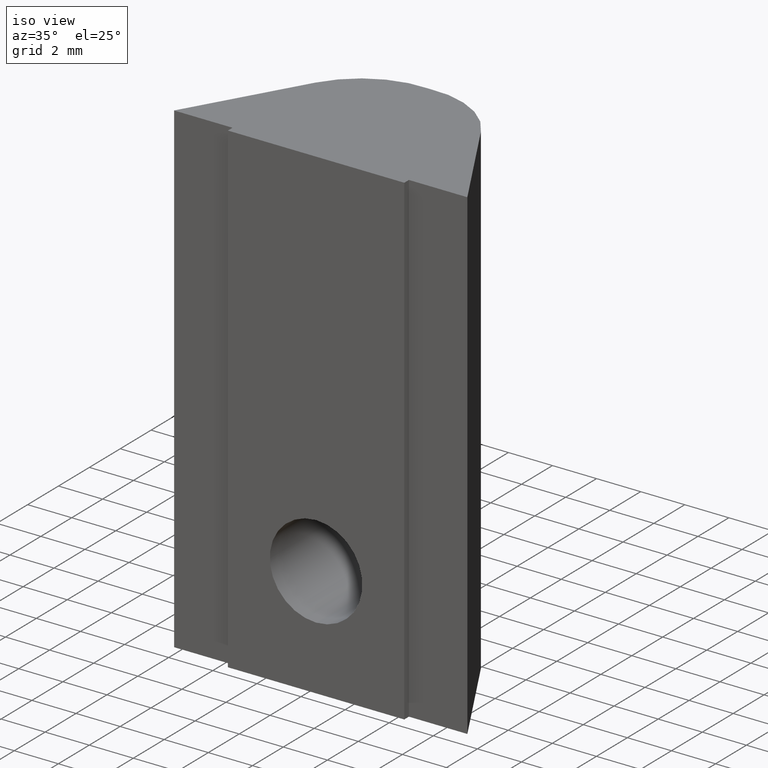
[diagram: clean part render]
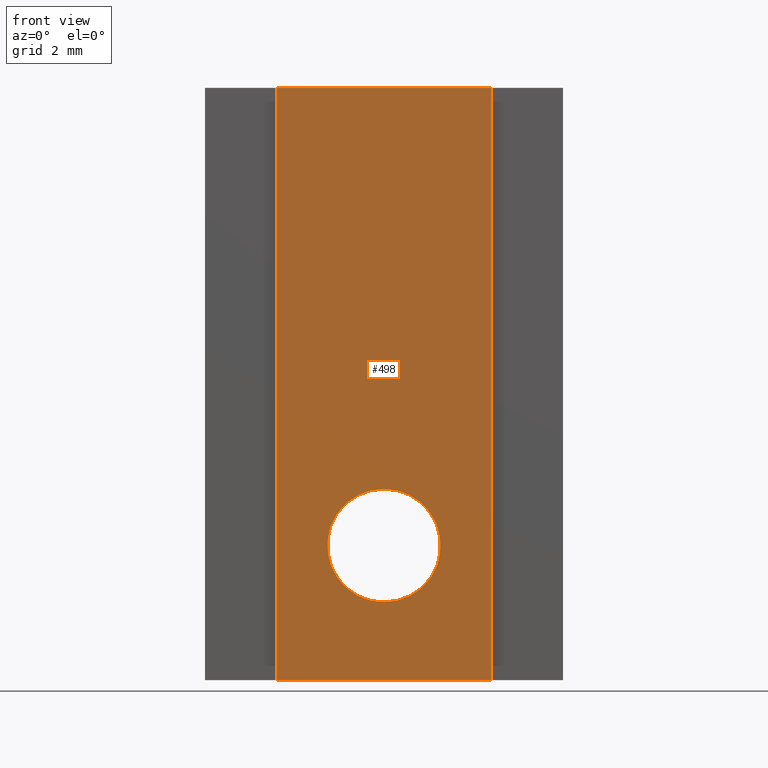
[diagram: tour spotlight — one face highlighted and labeled with its STEP entity id]
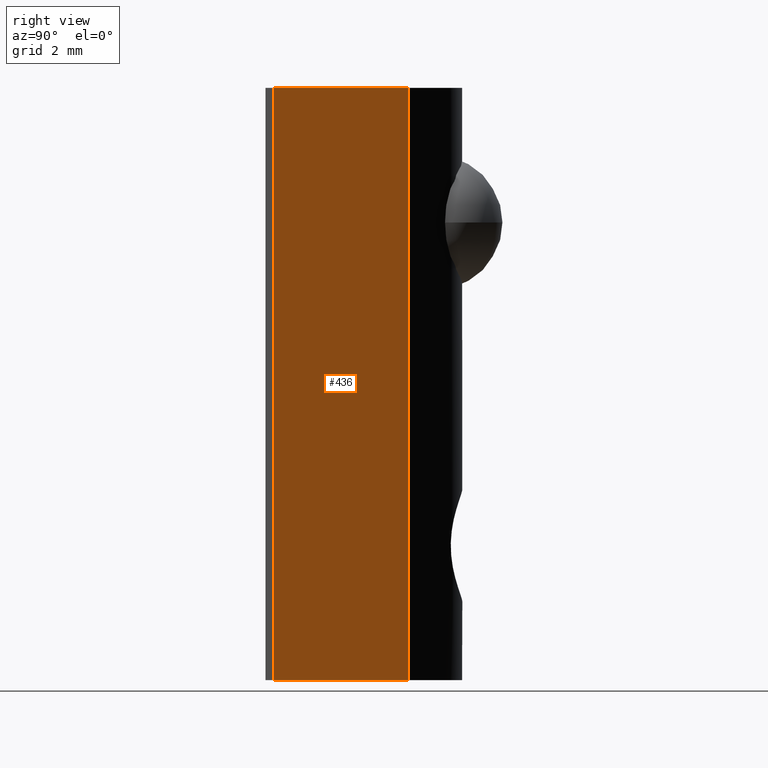
[diagram: tour spotlight — one face highlighted and labeled with its STEP entity id]
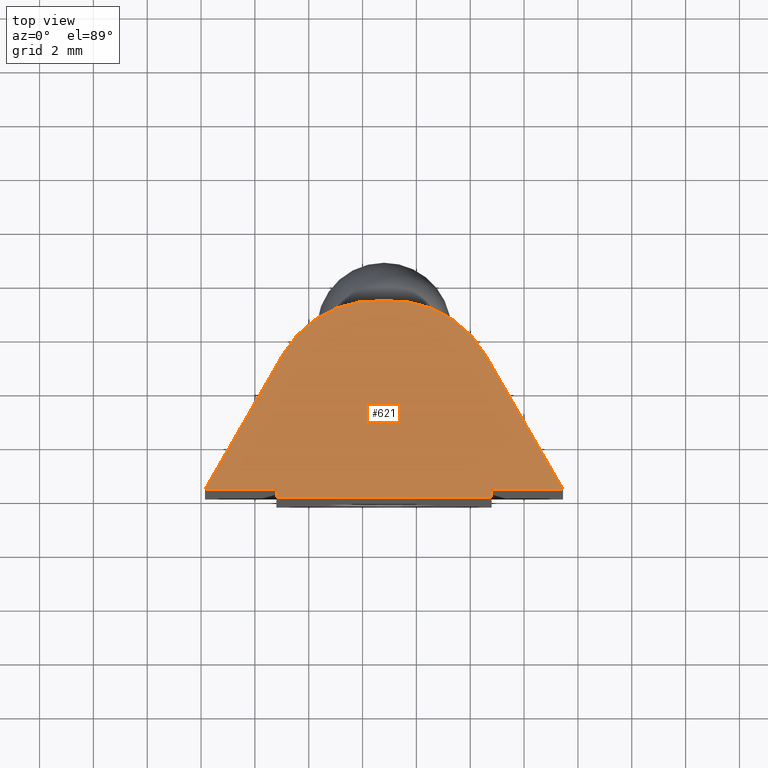
[diagram: tour spotlight — one face highlighted and labeled with its STEP entity id]
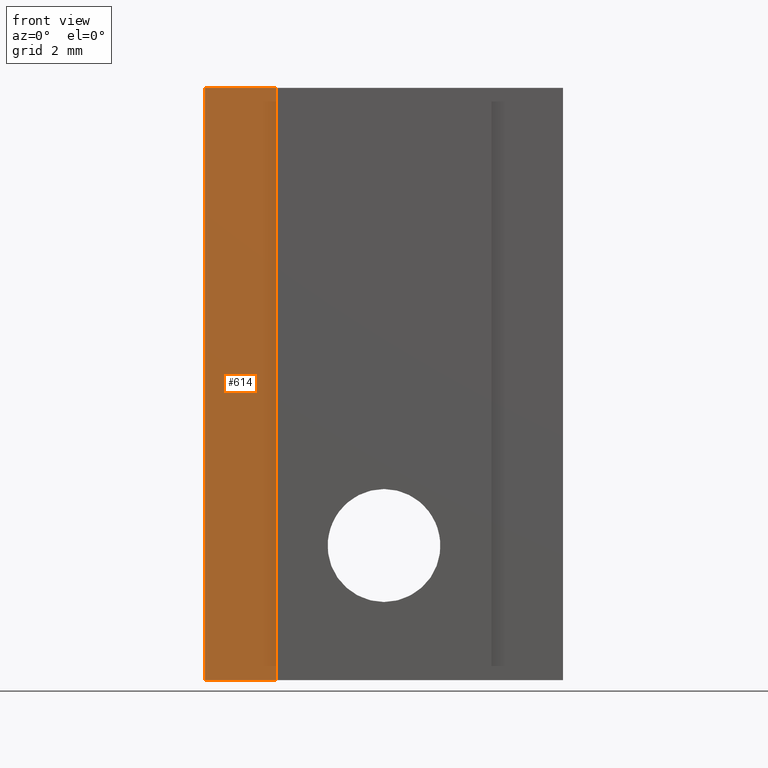
[diagram: tour spotlight — one face highlighted and labeled with its STEP entity id]
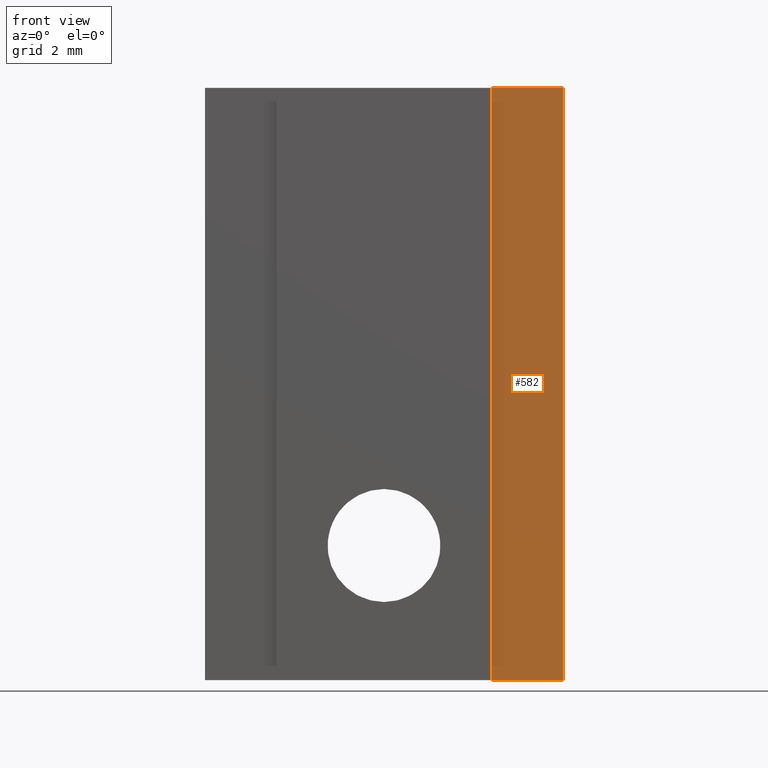
[diagram: tour spotlight — one face highlighted and labeled with its STEP entity id]
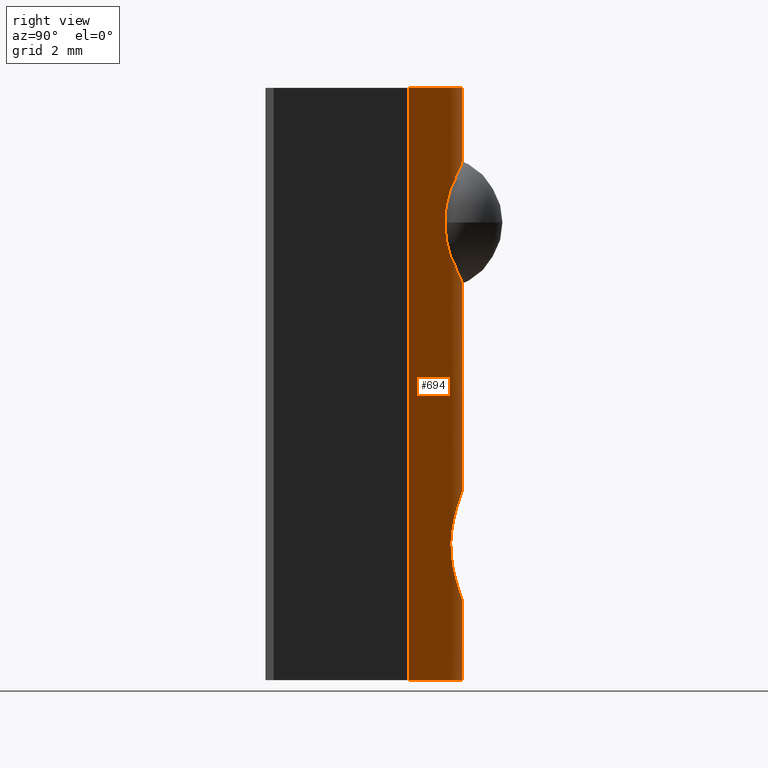
[diagram: tour spotlight — one face highlighted and labeled with its STEP entity id]
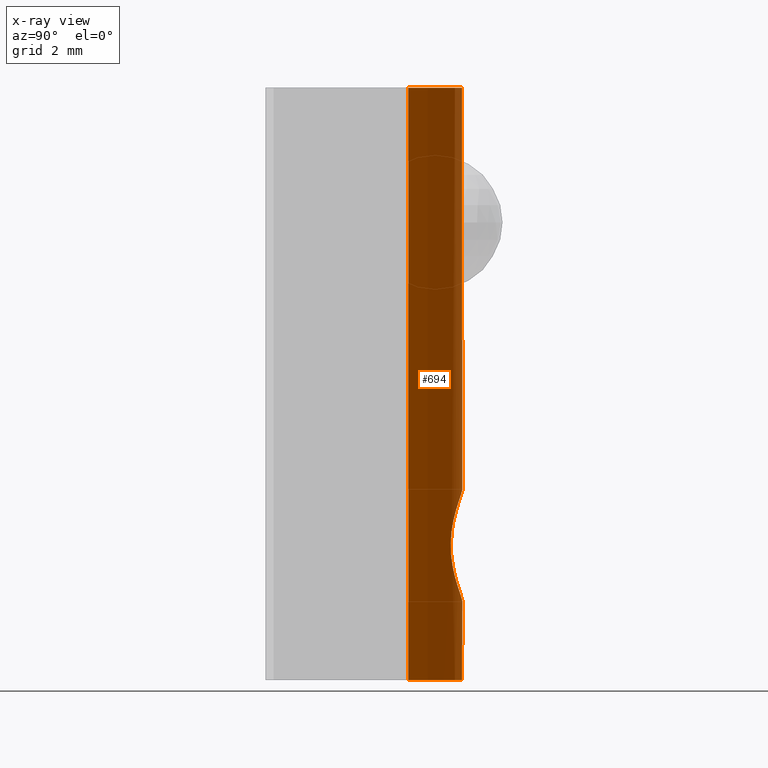
[diagram: x-ray of the same camera — body ghosted, this tour face saturated]
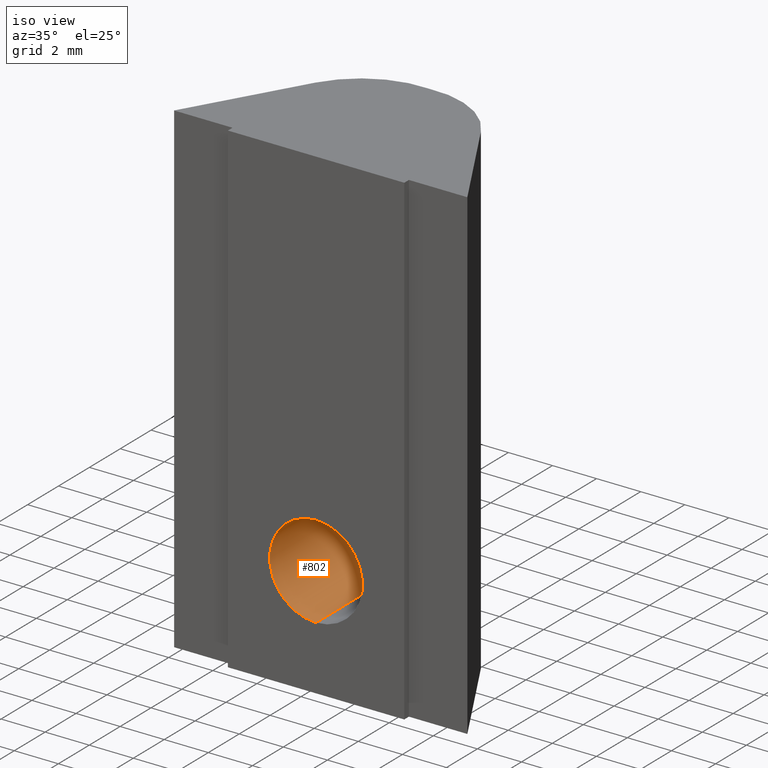
[diagram: tour spotlight — one face highlighted and labeled with its STEP entity id]
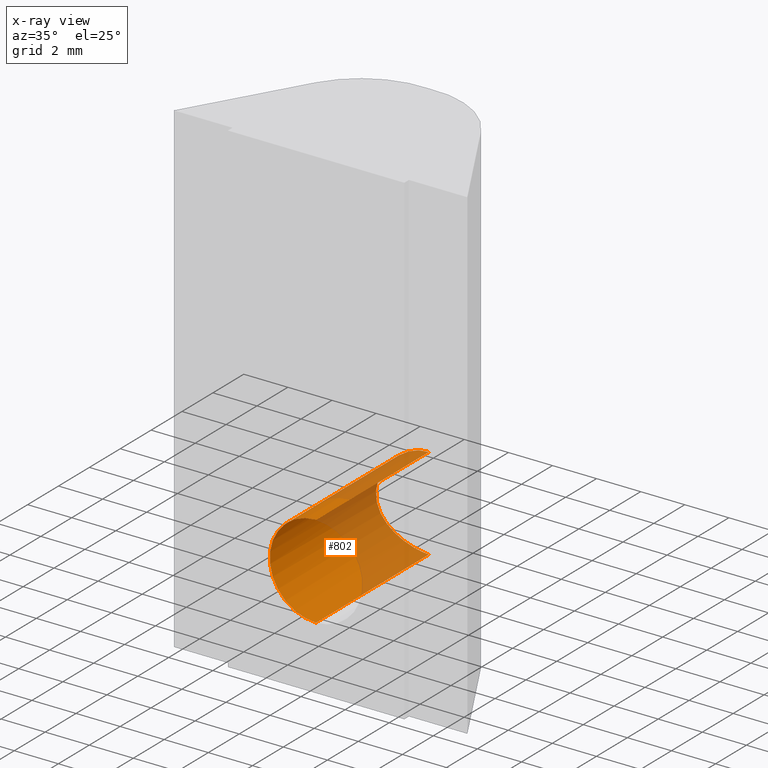
[diagram: x-ray of the same camera — body ghosted, this tour face saturated]
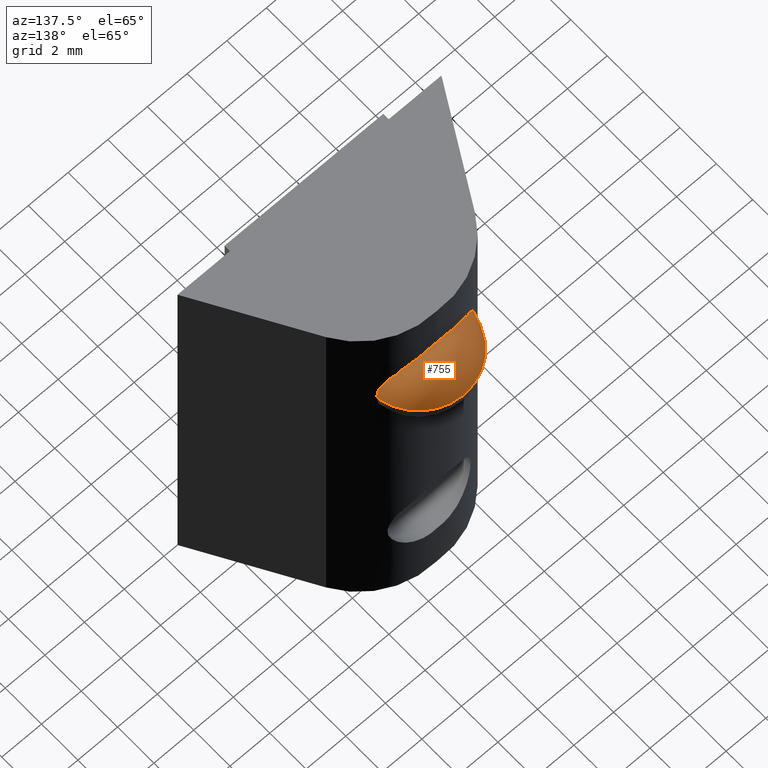
[diagram: tour spotlight — one face highlighted and labeled with its STEP entity id]
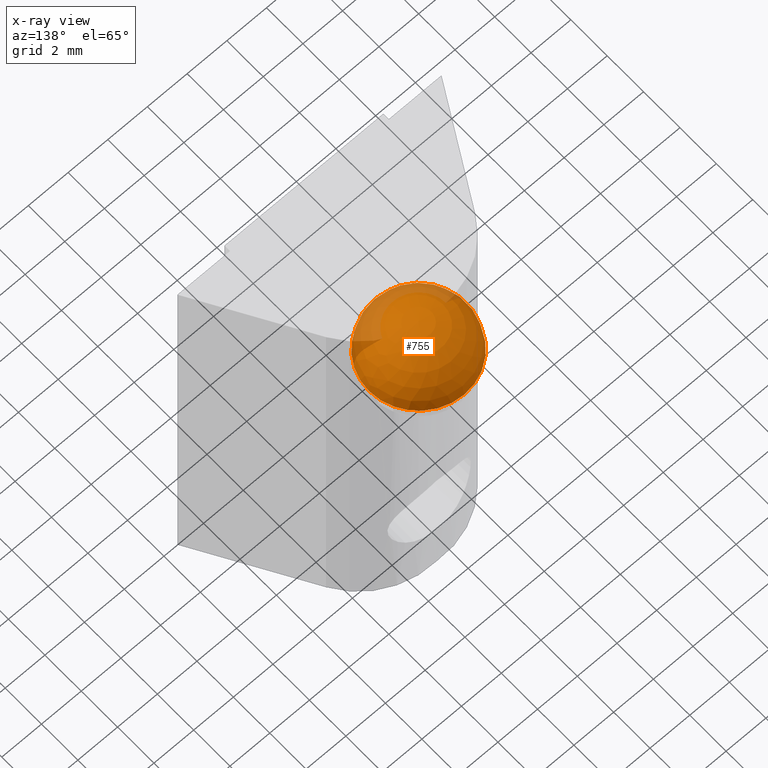
[diagram: x-ray of the same camera — body ghosted, this tour face saturated]
A machine part: a face-by-face anatomy tour. The part has 15 B-rep faces; the first image is the clean iso view, then the 8 largest visible faces are spotlighted one at a time (largest first), each with its STEP entity span.

Face 1 — front view, entity #498. In plain terms, the highlighted planar face has unit normal (0, -1, 0).
Definition (entity closure, byte-faithful):
#22 = CARTESIAN_POINT ( 'NONE',  ( 0.0000000000000000000, -0.2999999999999999300, -16.99999999999999600 ) ) ;
#37 = CIRCLE ( 'NONE', #281, 2.099999999999997900 ) ;
#42 = AXIS2_PLACEMENT_3D ( 'NONE', #22, #204, #224 ) ;
#49 = LINE ( 'NONE', #799, #267 ) ;
#65 = ORIENTED_EDGE ( 'NONE', *, *, #489, .T. ) ;
#97 = VERTEX_POINT ( 'NONE', #318 ) ;
#104 = DIRECTION ( 'NONE',  ( -0.0000000000000000000, 1.000000000000000000, -0.0000000000000000000 ) ) ;
#130 = CARTESIAN_POINT ( 'NONE',  ( 4.000000000000000000, -0.3000000000000002100, -22.00000000000000000 ) ) ;
#131 = VECTOR ( 'NONE', #517, 1000.000000000000000 ) ;
#142 = FACE_OUTER_BOUND ( 'NONE', #445, .T. ) ;
#150 = VERTEX_POINT ( 'NONE', #366 ) ;
#174 = FACE_BOUND ( 'NONE', #313, .T. ) ;
#181 = EDGE_CURVE ( 'NONE', #97, #382, #218, .T. ) ;
#203 = CARTESIAN_POINT ( 'NONE',  ( 2.571758278209441500E-016, -0.2999999999999999300, -19.09999999999999400 ) ) ;
#204 = DIRECTION ( 'NONE',  ( -0.0000000000000000000, 1.000000000000000000, -0.0000000000000000000 ) ) ;
#218 = LINE ( 'NONE', #361, #340 ) ;
#224 = DIRECTION ( 'NONE',  ( 0.0000000000000000000, 0.0000000000000000000, 1.000000000000000000 ) ) ;
#235 = EDGE_CURVE ( 'NONE', #150, #329, #49, .T. ) ;
#241 = DIRECTION ( 'NONE',  ( 1.000000000000000000, -0.0000000000000000000, -0.0000000000000000000 ) ) ;
#252 = VECTOR ( 'NONE', #262, 1000.000000000000000 ) ;
#262 = DIRECTION ( 'NONE',  ( 0.0000000000000000000, 0.0000000000000000000, 1.000000000000000000 ) ) ;
#263 = ORIENTED_EDGE ( 'NONE', *, *, #699, .T. ) ;
#267 = VECTOR ( 'NONE', #241, 1000.000000000000000 ) ;
#281 = AXIS2_PLACEMENT_3D ( 'NONE', #296, #104, #289 ) ;
#289 = DIRECTION ( 'NONE',  ( 0.0000000000000000000, 0.0000000000000000000, 1.000000000000000000 ) ) ;
#296 = CARTESIAN_POINT ( 'NONE',  ( 0.0000000000000000000, -0.2999999999999999300, -16.99999999999999600 ) ) ;
#311 = CARTESIAN_POINT ( 'NONE',  ( -4.000000000000000000, -0.3000000000000002100, -22.00000000000000000 ) ) ;
#313 = EDGE_LOOP ( 'NONE', ( #676, #65 ) ) ;
#318 = CARTESIAN_POINT ( 'NONE',  ( -4.000000000000000000, -0.3000000000000002100, 0.0000000000000000000 ) ) ;
#323 = CARTESIAN_POINT ( 'NONE',  ( 4.000000000000000000, -0.3000000000000002100, 0.0000000000000000000 ) ) ;
#329 = VERTEX_POINT ( 'NONE', #130 ) ;
#333 = ORIENTED_EDGE ( 'NONE', *, *, #435, .F. ) ;
#340 = VECTOR ( 'NONE', #605, 1000.000000000000000 ) ;
#361 = CARTESIAN_POINT ( 'NONE',  ( 4.000000000000000000, -0.3000000000000002100, 0.0000000000000000000 ) ) ;
#366 = CARTESIAN_POINT ( 'NONE',  ( -4.000000000000000000, -0.3000000000000002100, -22.00000000000000000 ) ) ;
#382 = VERTEX_POINT ( 'NONE', #323 ) ;
#419 = LINE ( 'NONE', #703, #131 ) ;
#428 = LINE ( 'NONE', #311, #252 ) ;
#435 = EDGE_CURVE ( 'NONE', #150, #97, #428, .T. ) ;
#445 = EDGE_LOOP ( 'NONE', ( #654, #333, #454, #263 ) ) ;
#454 = ORIENTED_EDGE ( 'NONE', *, *, #235, .T. ) ;
#489 = EDGE_CURVE ( 'NONE', #490, #597, #37, .T. ) ;
#490 = VERTEX_POINT ( 'NONE', #203 ) ;
#497 = CARTESIAN_POINT ( 'NONE',  ( 0.0000000000000000000, -0.2999999999999999300, -14.90000000000000000 ) ) ;
#498 = ADVANCED_FACE ( 'NONE', ( #174, #142 ), #784, .T. ) ;
#517 = DIRECTION ( 'NONE',  ( 0.0000000000000000000, 0.0000000000000000000, 1.000000000000000000 ) ) ;
#537 = DIRECTION ( 'NONE',  ( 0.0000000000000000000, -0.0000000000000000000, -1.000000000000000000 ) ) ;
#597 = VERTEX_POINT ( 'NONE', #497 ) ;
#605 = DIRECTION ( 'NONE',  ( 1.000000000000000000, -0.0000000000000000000, -0.0000000000000000000 ) ) ;
#654 = ORIENTED_EDGE ( 'NONE', *, *, #181, .F. ) ;
#655 = AXIS2_PLACEMENT_3D ( 'NONE', #669, #797, #537 ) ;
#669 = CARTESIAN_POINT ( 'NONE',  ( 4.000000000000000000, -0.3000000000000002100, -22.00000000000000000 ) ) ;
#676 = ORIENTED_EDGE ( 'NONE', *, *, #769, .T. ) ;
#699 = EDGE_CURVE ( 'NONE', #329, #382, #419, .T. ) ;
#703 = CARTESIAN_POINT ( 'NONE',  ( 4.000000000000000000, -0.3000000000000002100, -22.00000000000000000 ) ) ;
#725 = CIRCLE ( 'NONE', #42, 2.099999999999997900 ) ;
#769 = EDGE_CURVE ( 'NONE', #597, #490, #725, .T. ) ;
#784 = PLANE ( 'NONE',  #655 ) ;
#797 = DIRECTION ( 'NONE',  ( 0.0000000000000000000, -1.000000000000000000, 0.0000000000000000000 ) ) ;
#799 = CARTESIAN_POINT ( 'NONE',  ( 4.000000000000000000, -0.3000000000000002100, -22.00000000000000000 ) ) ;

Face 2 — right view, entity #436. In plain terms, the highlighted planar face has unit normal (0.866, 0.5, 0).
Definition (entity closure, byte-faithful):
#11 = CARTESIAN_POINT ( 'NONE',  ( 3.757047017994986900, 5.010741548740568000, -22.00000000000000000 ) ) ;
#13 = CARTESIAN_POINT ( 'NONE',  ( 6.650000000000000400, 1.626303258728256700E-016, -22.00000000000000000 ) ) ;
#14 = DIRECTION ( 'NONE',  ( 0.8660254037844383700, 0.5000000000000006700, -0.0000000000000000000 ) ) ;
#16 = VERTEX_POINT ( 'NONE', #183 ) ;
#43 = ORIENTED_EDGE ( 'NONE', *, *, #616, .F. ) ;
#63 = LINE ( 'NONE', #192, #589 ) ;
#92 = LINE ( 'NONE', #13, #384 ) ;
#129 = EDGE_CURVE ( 'NONE', #610, #562, #92, .T. ) ;
#183 = CARTESIAN_POINT ( 'NONE',  ( 3.757047017994986900, 5.010741548740568000, 0.0000000000000000000 ) ) ;
#192 = CARTESIAN_POINT ( 'NONE',  ( 6.650000000000000400, 1.626303258728256700E-016, 0.0000000000000000000 ) ) ;
#205 = LINE ( 'NONE', #770, #541 ) ;
#208 = FACE_OUTER_BOUND ( 'NONE', #803, .T. ) ;
#238 = AXIS2_PLACEMENT_3D ( 'NONE', #259, #14, #702 ) ;
#257 = DIRECTION ( 'NONE',  ( -0.5000000000000006700, 0.8660254037844382600, 0.0000000000000000000 ) ) ;
#259 = CARTESIAN_POINT ( 'NONE',  ( 6.650000000000000400, 1.626303258728256700E-016, -22.00000000000000000 ) ) ;
#275 = CARTESIAN_POINT ( 'NONE',  ( 3.757047017994986900, 5.010741548740568000, -22.00000000000000000 ) ) ;
#362 = LINE ( 'NONE', #275, #563 ) ;
#369 = VERTEX_POINT ( 'NONE', #568 ) ;
#384 = VECTOR ( 'NONE', #634, 1000.000000000000100 ) ;
#401 = PLANE ( 'NONE',  #238 ) ;
#436 = ADVANCED_FACE ( 'NONE', ( #208 ), #401, .T. ) ;
#449 = CARTESIAN_POINT ( 'NONE',  ( 6.650000000000000400, 1.626303258728256700E-016, -22.00000000000000000 ) ) ;
#541 = VECTOR ( 'NONE', #577, 1000.000000000000000 ) ;
#562 = VERTEX_POINT ( 'NONE', #11 ) ;
#563 = VECTOR ( 'NONE', #653, 1000.000000000000000 ) ;
#568 = CARTESIAN_POINT ( 'NONE',  ( 6.650000000000000400, 1.626303258728256700E-016, 0.0000000000000000000 ) ) ;
#577 = DIRECTION ( 'NONE',  ( 0.0000000000000000000, 0.0000000000000000000, 1.000000000000000000 ) ) ;
#589 = VECTOR ( 'NONE', #257, 1000.000000000000100 ) ;
#610 = VERTEX_POINT ( 'NONE', #449 ) ;
#612 = ORIENTED_EDGE ( 'NONE', *, *, #780, .F. ) ;
#616 = EDGE_CURVE ( 'NONE', #369, #16, #63, .T. ) ;
#627 = ORIENTED_EDGE ( 'NONE', *, *, #794, .T. ) ;
#634 = DIRECTION ( 'NONE',  ( -0.5000000000000006700, 0.8660254037844382600, 0.0000000000000000000 ) ) ;
#653 = DIRECTION ( 'NONE',  ( 0.0000000000000000000, 0.0000000000000000000, 1.000000000000000000 ) ) ;
#672 = ORIENTED_EDGE ( 'NONE', *, *, #129, .T. ) ;
#702 = DIRECTION ( 'NONE',  ( -0.5000000000000005600, 0.8660254037844382600, 0.0000000000000000000 ) ) ;
#770 = CARTESIAN_POINT ( 'NONE',  ( 6.650000000000000400, 1.626303258728256700E-016, -22.00000000000000000 ) ) ;
#780 = EDGE_CURVE ( 'NONE', #610, #369, #205, .T. ) ;
#794 = EDGE_CURVE ( 'NONE', #562, #16, #362, .T. ) ;
#803 = EDGE_LOOP ( 'NONE', ( #43, #612, #672, #627 ) ) ;

Face 3 — top view, entity #621. In plain terms, the highlighted planar face has unit normal (0, 0, 1).
Definition (entity closure, byte-faithful):
#1 = CARTESIAN_POINT ( 'NONE',  ( 6.650000000000000400, 1.626303258728256700E-016, 0.0000000000000000000 ) ) ;
#16 = VERTEX_POINT ( 'NONE', #183 ) ;
#21 = CARTESIAN_POINT ( 'NONE',  ( 0.0000000000000000000, 7.000000000000000000, 0.0000000000000000000 ) ) ;
#46 = CARTESIAN_POINT ( 'NONE',  ( -6.650000000000000400, 1.626303258728256700E-016, 0.0000000000000000000 ) ) ;
#63 = LINE ( 'NONE', #192, #589 ) ;
#67 = AXIS2_PLACEMENT_3D ( 'NONE', #643, #268, #71 ) ;
#71 = DIRECTION ( 'NONE',  ( 1.000000000000000000, 0.0000000000000000000, 0.0000000000000000000 ) ) ;
#77 = LINE ( 'NONE', #188, #285 ) ;
#97 = VERTEX_POINT ( 'NONE', #318 ) ;
#115 = VECTOR ( 'NONE', #547, 1000.000000000000000 ) ;
#118 = EDGE_CURVE ( 'NONE', #16, #407, #430, .T. ) ;
#125 = DIRECTION ( 'NONE',  ( -1.000000000000000000, 1.029617123758820600E-016, 0.0000000000000000000 ) ) ;
#127 = DIRECTION ( 'NONE',  ( 0.5000000000000006700, 0.8660254037844382600, 0.0000000000000000000 ) ) ;
#136 = CARTESIAN_POINT ( 'NONE',  ( 4.000000000000000000, -1.102182119232618300E-016, 0.0000000000000000000 ) ) ;
#181 = EDGE_CURVE ( 'NONE', #97, #382, #218, .T. ) ;
#182 = VERTEX_POINT ( 'NONE', #294 ) ;
#183 = CARTESIAN_POINT ( 'NONE',  ( 3.757047017994986900, 5.010741548740568000, 0.0000000000000000000 ) ) ;
#188 = CARTESIAN_POINT ( 'NONE',  ( -6.650000000000000400, 1.626303258728256700E-016, 0.0000000000000000000 ) ) ;
#192 = CARTESIAN_POINT ( 'NONE',  ( 6.650000000000000400, 1.626303258728256700E-016, 0.0000000000000000000 ) ) ;
#199 = DIRECTION ( 'NONE',  ( 1.000000000000000000, 0.0000000000000000000, -0.0000000000000000000 ) ) ;
#215 = VERTEX_POINT ( 'NONE', #677 ) ;
#218 = LINE ( 'NONE', #361, #340 ) ;
#227 = FACE_OUTER_BOUND ( 'NONE', #393, .T. ) ;
#246 = EDGE_CURVE ( 'NONE', #327, #407, #376, .T. ) ;
#257 = DIRECTION ( 'NONE',  ( -0.5000000000000006700, 0.8660254037844382600, 0.0000000000000000000 ) ) ;
#268 = DIRECTION ( 'NONE',  ( 0.0000000000000000000, 0.0000000000000000000, 1.000000000000000000 ) ) ;
#273 = ORIENTED_EDGE ( 'NONE', *, *, #118, .T. ) ;
#282 = CARTESIAN_POINT ( 'NONE',  ( 4.000000000000000000, -1.102182119232618300E-016, 0.0000000000000000000 ) ) ;
#285 = VECTOR ( 'NONE', #127, 1000.000000000000100 ) ;
#291 = AXIS2_PLACEMENT_3D ( 'NONE', #395, #700, #705 ) ;
#294 = CARTESIAN_POINT ( 'NONE',  ( -4.000000000000000000, -1.102182119232618300E-016, 0.0000000000000000000 ) ) ;
#318 = CARTESIAN_POINT ( 'NONE',  ( -4.000000000000000000, -0.3000000000000002100, 0.0000000000000000000 ) ) ;
#323 = CARTESIAN_POINT ( 'NONE',  ( 4.000000000000000000, -0.3000000000000002100, 0.0000000000000000000 ) ) ;
#325 = AXIS2_PLACEMENT_3D ( 'NONE', #691, #626, #199 ) ;
#327 = VERTEX_POINT ( 'NONE', #571 ) ;
#338 = LINE ( 'NONE', #726, #115 ) ;
#340 = VECTOR ( 'NONE', #605, 1000.000000000000000 ) ;
#361 = CARTESIAN_POINT ( 'NONE',  ( 4.000000000000000000, -0.3000000000000002100, 0.0000000000000000000 ) ) ;
#369 = VERTEX_POINT ( 'NONE', #568 ) ;
#372 = LINE ( 'NONE', #282, #550 ) ;
#376 = CIRCLE ( 'NONE', #291, 4.000000000000000000 ) ;
#382 = VERTEX_POINT ( 'NONE', #323 ) ;
#393 = EDGE_LOOP ( 'NONE', ( #273, #711, #706, #480, #471, #771, #622, #475, #759 ) ) ;
#395 = CARTESIAN_POINT ( 'NONE',  ( -0.2929454028572334200, 3.010741548740566700, 0.0000000000000000000 ) ) ;
#407 = VERTEX_POINT ( 'NONE', #21 ) ;
#430 = CIRCLE ( 'NONE', #67, 4.000000000000000000 ) ;
#471 = ORIENTED_EDGE ( 'NONE', *, *, #494, .F. ) ;
#475 = ORIENTED_EDGE ( 'NONE', *, *, #667, .T. ) ;
#480 = ORIENTED_EDGE ( 'NONE', *, *, #518, .F. ) ;
#494 = EDGE_CURVE ( 'NONE', #97, #182, #338, .T. ) ;
#518 = EDGE_CURVE ( 'NONE', #182, #215, #806, .T. ) ;
#547 = DIRECTION ( 'NONE',  ( 0.0000000000000000000, 1.000000000000000000, 0.0000000000000000000 ) ) ;
#550 = VECTOR ( 'NONE', #714, 1000.000000000000000 ) ;
#559 = PLANE ( 'NONE',  #325 ) ;
#566 = EDGE_CURVE ( 'NONE', #215, #327, #77, .T. ) ;
#568 = CARTESIAN_POINT ( 'NONE',  ( 6.650000000000000400, 1.626303258728256700E-016, 0.0000000000000000000 ) ) ;
#571 = CARTESIAN_POINT ( 'NONE',  ( -3.757047017994986900, 5.010741548740568000, 0.0000000000000000000 ) ) ;
#589 = VECTOR ( 'NONE', #257, 1000.000000000000100 ) ;
#605 = DIRECTION ( 'NONE',  ( 1.000000000000000000, -0.0000000000000000000, -0.0000000000000000000 ) ) ;
#613 = VECTOR ( 'NONE', #125, 1000.000000000000000 ) ;
#616 = EDGE_CURVE ( 'NONE', #369, #16, #63, .T. ) ;
#621 = ADVANCED_FACE ( 'NONE', ( #227 ), #559, .T. ) ;
#622 = ORIENTED_EDGE ( 'NONE', *, *, #809, .T. ) ;
#626 = DIRECTION ( 'NONE',  ( 0.0000000000000000000, 0.0000000000000000000, 1.000000000000000000 ) ) ;
#643 = CARTESIAN_POINT ( 'NONE',  ( 0.2929454028572334200, 3.010741548740566700, 0.0000000000000000000 ) ) ;
#667 = EDGE_CURVE ( 'NONE', #766, #369, #747, .T. ) ;
#677 = CARTESIAN_POINT ( 'NONE',  ( -6.650000000000000400, 1.626303258728256700E-016, 0.0000000000000000000 ) ) ;
#691 = CARTESIAN_POINT ( 'NONE',  ( 0.2929454028572334200, 3.010741548740566700, 0.0000000000000000000 ) ) ;
#700 = DIRECTION ( 'NONE',  ( -0.0000000000000000000, -0.0000000000000000000, -1.000000000000000000 ) ) ;
#705 = DIRECTION ( 'NONE',  ( -1.000000000000000000, 0.0000000000000000000, 0.0000000000000000000 ) ) ;
#706 = ORIENTED_EDGE ( 'NONE', *, *, #566, .F. ) ;
#711 = ORIENTED_EDGE ( 'NONE', *, *, #246, .F. ) ;
#714 = DIRECTION ( 'NONE',  ( -0.0000000000000000000, 1.000000000000000000, -0.0000000000000000000 ) ) ;
#726 = CARTESIAN_POINT ( 'NONE',  ( -4.000000000000000000, -1.102182119232618300E-016, 0.0000000000000000000 ) ) ;
#737 = VECTOR ( 'NONE', #753, 1000.000000000000000 ) ;
#747 = LINE ( 'NONE', #1, #737 ) ;
#753 = DIRECTION ( 'NONE',  ( 1.000000000000000000, 1.029617123758820600E-016, -0.0000000000000000000 ) ) ;
#759 = ORIENTED_EDGE ( 'NONE', *, *, #616, .T. ) ;
#766 = VERTEX_POINT ( 'NONE', #136 ) ;
#771 = ORIENTED_EDGE ( 'NONE', *, *, #181, .T. ) ;
#806 = LINE ( 'NONE', #46, #613 ) ;
#809 = EDGE_CURVE ( 'NONE', #382, #766, #372, .T. ) ;

Face 4 — front view, entity #614. In plain terms, the highlighted planar face has unit normal (0, 1, 0).
Definition (entity closure, byte-faithful):
#46 = CARTESIAN_POINT ( 'NONE',  ( -6.650000000000000400, 1.626303258728256700E-016, 0.0000000000000000000 ) ) ;
#60 = ORIENTED_EDGE ( 'NONE', *, *, #518, .T. ) ;
#79 = CARTESIAN_POINT ( 'NONE',  ( -6.650000000000000400, 1.626303258728256700E-016, -22.00000000000000000 ) ) ;
#90 = VECTOR ( 'NONE', #314, 1000.000000000000000 ) ;
#108 = VECTOR ( 'NONE', #576, 1000.000000000000000 ) ;
#111 = ORIENTED_EDGE ( 'NONE', *, *, #463, .F. ) ;
#125 = DIRECTION ( 'NONE',  ( -1.000000000000000000, 1.029617123758820600E-016, 0.0000000000000000000 ) ) ;
#135 = CARTESIAN_POINT ( 'NONE',  ( -6.650000000000000400, 1.626303258728256700E-016, -22.00000000000000000 ) ) ;
#156 = FACE_OUTER_BOUND ( 'NONE', #349, .T. ) ;
#170 = ORIENTED_EDGE ( 'NONE', *, *, #304, .F. ) ;
#182 = VERTEX_POINT ( 'NONE', #294 ) ;
#215 = VERTEX_POINT ( 'NONE', #677 ) ;
#277 = LINE ( 'NONE', #79, #108 ) ;
#294 = CARTESIAN_POINT ( 'NONE',  ( -4.000000000000000000, -1.102182119232618300E-016, 0.0000000000000000000 ) ) ;
#304 = EDGE_CURVE ( 'NONE', #491, #215, #483, .T. ) ;
#314 = DIRECTION ( 'NONE',  ( 0.0000000000000000000, 0.0000000000000000000, 1.000000000000000000 ) ) ;
#343 = DIRECTION ( 'NONE',  ( 0.0000000000000000000, 0.0000000000000000000, 1.000000000000000000 ) ) ;
#349 = EDGE_LOOP ( 'NONE', ( #60, #170, #111, #432 ) ) ;
#373 = CARTESIAN_POINT ( 'NONE',  ( -6.650000000000000400, 1.626303258728256700E-016, -22.00000000000000000 ) ) ;
#388 = AXIS2_PLACEMENT_3D ( 'NONE', #373, #451, #503 ) ;
#432 = ORIENTED_EDGE ( 'NONE', *, *, #513, .T. ) ;
#451 = DIRECTION ( 'NONE',  ( 1.029617123758820600E-016, 1.000000000000000000, -0.0000000000000000000 ) ) ;
#463 = EDGE_CURVE ( 'NONE', #781, #491, #277, .T. ) ;
#483 = LINE ( 'NONE', #135, #90 ) ;
#491 = VERTEX_POINT ( 'NONE', #729 ) ;
#503 = DIRECTION ( 'NONE',  ( -1.000000000000000000, 1.029617123758820600E-016, 0.0000000000000000000 ) ) ;
#513 = EDGE_CURVE ( 'NONE', #781, #182, #529, .T. ) ;
#518 = EDGE_CURVE ( 'NONE', #182, #215, #806, .T. ) ;
#529 = LINE ( 'NONE', #673, #728 ) ;
#576 = DIRECTION ( 'NONE',  ( -1.000000000000000000, 1.029617123758820600E-016, 0.0000000000000000000 ) ) ;
#579 = CARTESIAN_POINT ( 'NONE',  ( -4.000000000000000000, -1.102182119232618300E-016, -22.00000000000000000 ) ) ;
#613 = VECTOR ( 'NONE', #125, 1000.000000000000000 ) ;
#614 = ADVANCED_FACE ( 'NONE', ( #156 ), #757, .F. ) ;
#673 = CARTESIAN_POINT ( 'NONE',  ( -4.000000000000000000, -1.102182119232618300E-016, -22.00000000000000000 ) ) ;
#677 = CARTESIAN_POINT ( 'NONE',  ( -6.650000000000000400, 1.626303258728256700E-016, 0.0000000000000000000 ) ) ;
#728 = VECTOR ( 'NONE', #343, 1000.000000000000000 ) ;
#729 = CARTESIAN_POINT ( 'NONE',  ( -6.650000000000000400, 1.626303258728256700E-016, -22.00000000000000000 ) ) ;
#757 = PLANE ( 'NONE',  #388 ) ;
#781 = VERTEX_POINT ( 'NONE', #579 ) ;
#806 = LINE ( 'NONE', #46, #613 ) ;

Face 5 — front view, entity #582. In plain terms, the highlighted planar face has unit normal (0, -1, 0).
Definition (entity closure, byte-faithful):
#1 = CARTESIAN_POINT ( 'NONE',  ( 6.650000000000000400, 1.626303258728256700E-016, 0.0000000000000000000 ) ) ;
#34 = ORIENTED_EDGE ( 'NONE', *, *, #608, .T. ) ;
#40 = DIRECTION ( 'NONE',  ( 1.000000000000000000, 1.029617123758820600E-016, 0.0000000000000000000 ) ) ;
#100 = DIRECTION ( 'NONE',  ( 1.029617123758820600E-016, -1.000000000000000000, 0.0000000000000000000 ) ) ;
#107 = VERTEX_POINT ( 'NONE', #255 ) ;
#123 = CARTESIAN_POINT ( 'NONE',  ( 6.650000000000000400, 1.626303258728256700E-016, -22.00000000000000000 ) ) ;
#136 = CARTESIAN_POINT ( 'NONE',  ( 4.000000000000000000, -1.102182119232618300E-016, 0.0000000000000000000 ) ) ;
#140 = CARTESIAN_POINT ( 'NONE',  ( 4.000000000000000000, -1.102182119232618300E-016, -22.00000000000000000 ) ) ;
#205 = LINE ( 'NONE', #770, #541 ) ;
#217 = PLANE ( 'NONE',  #683 ) ;
#251 = VECTOR ( 'NONE', #328, 1000.000000000000000 ) ;
#255 = CARTESIAN_POINT ( 'NONE',  ( 4.000000000000000000, -1.102182119232618300E-016, -22.00000000000000000 ) ) ;
#276 = FACE_OUTER_BOUND ( 'NONE', #743, .T. ) ;
#328 = DIRECTION ( 'NONE',  ( 0.0000000000000000000, 0.0000000000000000000, 1.000000000000000000 ) ) ;
#369 = VERTEX_POINT ( 'NONE', #568 ) ;
#391 = ORIENTED_EDGE ( 'NONE', *, *, #754, .F. ) ;
#398 = VECTOR ( 'NONE', #752, 1000.000000000000000 ) ;
#446 = LINE ( 'NONE', #140, #251 ) ;
#449 = CARTESIAN_POINT ( 'NONE',  ( 6.650000000000000400, 1.626303258728256700E-016, -22.00000000000000000 ) ) ;
#541 = VECTOR ( 'NONE', #577, 1000.000000000000000 ) ;
#568 = CARTESIAN_POINT ( 'NONE',  ( 6.650000000000000400, 1.626303258728256700E-016, 0.0000000000000000000 ) ) ;
#573 = LINE ( 'NONE', #123, #398 ) ;
#577 = DIRECTION ( 'NONE',  ( 0.0000000000000000000, 0.0000000000000000000, 1.000000000000000000 ) ) ;
#580 = CARTESIAN_POINT ( 'NONE',  ( 6.650000000000000400, 1.626303258728256700E-016, -22.00000000000000000 ) ) ;
#582 = ADVANCED_FACE ( 'NONE', ( #276 ), #217, .T. ) ;
#608 = EDGE_CURVE ( 'NONE', #107, #610, #573, .T. ) ;
#610 = VERTEX_POINT ( 'NONE', #449 ) ;
#646 = ORIENTED_EDGE ( 'NONE', *, *, #780, .T. ) ;
#667 = EDGE_CURVE ( 'NONE', #766, #369, #747, .T. ) ;
#683 = AXIS2_PLACEMENT_3D ( 'NONE', #580, #100, #40 ) ;
#704 = ORIENTED_EDGE ( 'NONE', *, *, #667, .F. ) ;
#737 = VECTOR ( 'NONE', #753, 1000.000000000000000 ) ;
#743 = EDGE_LOOP ( 'NONE', ( #704, #391, #34, #646 ) ) ;
#747 = LINE ( 'NONE', #1, #737 ) ;
#752 = DIRECTION ( 'NONE',  ( 1.000000000000000000, 1.029617123758820600E-016, -0.0000000000000000000 ) ) ;
#753 = DIRECTION ( 'NONE',  ( 1.000000000000000000, 1.029617123758820600E-016, -0.0000000000000000000 ) ) ;
#754 = EDGE_CURVE ( 'NONE', #107, #766, #446, .T. ) ;
#766 = VERTEX_POINT ( 'NONE', #136 ) ;
#770 = CARTESIAN_POINT ( 'NONE',  ( 6.650000000000000400, 1.626303258728256700E-016, -22.00000000000000000 ) ) ;
#780 = EDGE_CURVE ( 'NONE', #610, #369, #205, .T. ) ;

Face 6 — right view, entity #694. An x-ray twin of the same camera follows (body ghosted, this face saturated) — the face is partly hidden behind the body. In plain terms, the highlighted cylindrical surface (partial cylindrical patch) has radius 4 mm, axis along (0, 0, 1).
Definition (entity closure, byte-faithful):
#11 = CARTESIAN_POINT ( 'NONE',  ( 3.757047017994986900, 5.010741548740568000, -22.00000000000000000 ) ) ;
#16 = VERTEX_POINT ( 'NONE', #183 ) ;
#21 = CARTESIAN_POINT ( 'NONE',  ( 0.0000000000000000000, 7.000000000000000000, 0.0000000000000000000 ) ) ;
#26 = CARTESIAN_POINT ( 'NONE',  ( 0.2778427095453829300, 7.013015978677898900, -14.91386525814885100 ) ) ;
#31 = CARTESIAN_POINT ( 'NONE',  ( 1.065483002489959100, 6.943797238216981200, -15.16950234633369700 ) ) ;
#41 = ORIENTED_EDGE ( 'NONE', *, *, #118, .F. ) ;
#66 = DIRECTION ( 'NONE',  ( 0.0000000000000000000, 0.0000000000000000000, 1.000000000000000000 ) ) ;
#67 = AXIS2_PLACEMENT_3D ( 'NONE', #643, #268, #71 ) ;
#71 = DIRECTION ( 'NONE',  ( 1.000000000000000000, 0.0000000000000000000, 0.0000000000000000000 ) ) ;
#78 = AXIS2_PLACEMENT_3D ( 'NONE', #84, #462, #641 ) ;
#84 = CARTESIAN_POINT ( 'NONE',  ( 0.2929454028572334200, 3.010741548740566700, -22.00000000000000000 ) ) ;
#96 = EDGE_CURVE ( 'NONE', #146, #407, #698, .T. ) ;
#118 = EDGE_CURVE ( 'NONE', #16, #407, #430, .T. ) ;
#138 = CARTESIAN_POINT ( 'NONE',  ( 0.5492240288136818200, 7.004830928030088400, -14.96837313992467100 ) ) ;
#144 = CARTESIAN_POINT ( 'NONE',  ( 1.670093248805526200, 6.767075733069882300, -15.71965499976650400 ) ) ;
#146 = VERTEX_POINT ( 'NONE', #744 ) ;
#152 = CARTESIAN_POINT ( 'NONE',  ( 2.085941216390682800, 6.586504634481535400, -16.72104059423844900 ) ) ;
#153 = CYLINDRICAL_SURFACE ( 'NONE', #78, 4.000000000000000000 ) ;
#155 = CARTESIAN_POINT ( 'NONE',  ( 0.0000000000000000000, 7.000000000000000000, -14.89999999999999900 ) ) ;
#183 = CARTESIAN_POINT ( 'NONE',  ( 3.757047017994986900, 5.010741548740568000, 0.0000000000000000000 ) ) ;
#184 = CARTESIAN_POINT ( 'NONE',  ( -2.168404344971008900E-016, 7.000000000000000000, -19.09999999999999400 ) ) ;
#185 = DIRECTION ( 'NONE',  ( 0.0000000000000000000, 0.0000000000000000000, 1.000000000000000000 ) ) ;
#206 = CARTESIAN_POINT ( 'NONE',  ( 0.6841240291442684000, 6.993631784759942100, -15.00978186247948700 ) ) ;
#213 = CARTESIAN_POINT ( 'NONE',  ( -2.168404344971008900E-016, 7.000000000000000000, -19.09999999999999400 ) ) ;
#214 = CARTESIAN_POINT ( 'NONE',  ( 1.821280718181895700, 6.708142508589593200, -15.94575556681216500 ) ) ;
#225 = CARTESIAN_POINT ( 'NONE',  ( 1.670459469328647400, 6.766941291681750800, -18.27987192857328900 ) ) ;
#240 = VERTEX_POINT ( 'NONE', #506 ) ;
#250 = CARTESIAN_POINT ( 'NONE',  ( 0.1401207566892639100, 7.010289564343477900, -19.09999999999999400 ) ) ;
#256 = CARTESIAN_POINT ( 'NONE',  ( 0.6862748488494189200, 6.993394619347876400, -18.98942124772582200 ) ) ;
#260 = ORIENTED_EDGE ( 'NONE', *, *, #96, .T. ) ;
#268 = DIRECTION ( 'NONE',  ( 0.0000000000000000000, 0.0000000000000000000, 1.000000000000000000 ) ) ;
#271 = CARTESIAN_POINT ( 'NONE',  ( 1.296584994652632700, 6.887950795788006200, -15.32606086254450700 ) ) ;
#275 = CARTESIAN_POINT ( 'NONE',  ( 3.757047017994986900, 5.010741548740568000, -22.00000000000000000 ) ) ;
#279 = ORIENTED_EDGE ( 'NONE', *, *, #794, .F. ) ;
#299 = VECTOR ( 'NONE', #185, 1000.000000000000000 ) ;
#305 = CARTESIAN_POINT ( 'NONE',  ( 0.2929454028572334200, 3.010741548740566700, -22.00000000000000000 ) ) ;
#309 = DIRECTION ( 'NONE',  ( 1.000000000000000000, 0.0000000000000000000, 0.0000000000000000000 ) ) ;
#337 = CARTESIAN_POINT ( 'NONE',  ( 1.297061383087251900, 6.887819709980458800, -18.67354579114834600 ) ) ;
#346 = CARTESIAN_POINT ( 'NONE',  ( 2.044340105706192700, 6.608803008618787400, -17.55335733217450000 ) ) ;
#356 = AXIS2_PLACEMENT_3D ( 'NONE', #305, #66, #309 ) ;
#362 = LINE ( 'NONE', #275, #563 ) ;
#367 = B_SPLINE_CURVE_WITH_KNOTS ( 'NONE', 3,
 ( #155, #609, #26, #138, #206, #31, #271, #525, #144, #214, #588, #783, #730, #152, #528, #661, #346, #722, #415, #225, #721, #337, #779, #256, #592, #501, #250, #184 ),
 .UNSPECIFIED., .F., .F.,
 ( 4, 2, 2, 2, 2, 2, 2, 2, 2, 2, 2, 2, 2, 4 ),
 ( 2.117074005974005400E-019, 0.0004148728083314227900, 0.0008297456166628452500, 0.001659491233325687900, 0.002074364041657113100, 0.002489236849988537600, 0.002904109658319962500, 0.003318982466651387500, 0.004148728083314227900, 0.004563600891645647200, 0.004978473699977068200, 0.005808219316639900800, 0.006223092124971314900, 0.006637964933302729000 ),
 .UNSPECIFIED. ) ;
#386 = DIRECTION ( 'NONE',  ( 0.0000000000000000000, 0.0000000000000000000, 1.000000000000000000 ) ) ;
#407 = VERTEX_POINT ( 'NONE', #21 ) ;
#412 = EDGE_CURVE ( 'NONE', #240, #678, #668, .T. ) ;
#415 = CARTESIAN_POINT ( 'NONE',  ( 1.821627727605634300, 6.707998891988374600, -18.05365051807418200 ) ) ;
#417 = ORIENTED_EDGE ( 'NONE', *, *, #412, .T. ) ;
#430 = CIRCLE ( 'NONE', #67, 4.000000000000000000 ) ;
#462 = DIRECTION ( 'NONE',  ( 0.0000000000000000000, 0.0000000000000000000, 1.000000000000000000 ) ) ;
#495 = VECTOR ( 'NONE', #386, 1000.000000000000000 ) ;
#501 = CARTESIAN_POINT ( 'NONE',  ( 0.2786961704262097600, 7.013065025561826500, -19.08611431995495500 ) ) ;
#506 = CARTESIAN_POINT ( 'NONE',  ( 0.0000000000000000000, 7.000000000000000000, -22.00000000000000000 ) ) ;
#516 = EDGE_LOOP ( 'NONE', ( #617, #260, #41, #279, #637, #417 ) ) ;
#525 = CARTESIAN_POINT ( 'NONE',  ( 1.583050752569966900, 6.798305301411264900, -15.61354713897169900 ) ) ;
#528 = CARTESIAN_POINT ( 'NONE',  ( 2.099827479962585600, 6.579379551697452500, -16.85814070291563400 ) ) ;
#530 = EDGE_CURVE ( 'NONE', #146, #678, #367, .T. ) ;
#545 = EDGE_CURVE ( 'NONE', #562, #240, #748, .T. ) ;
#562 = VERTEX_POINT ( 'NONE', #11 ) ;
#563 = VECTOR ( 'NONE', #653, 1000.000000000000000 ) ;
#567 = CARTESIAN_POINT ( 'NONE',  ( 0.0000000000000000000, 7.000000000000000000, -22.00000000000000000 ) ) ;
#588 = CARTESIAN_POINT ( 'NONE',  ( 1.885337724352163800, 6.680566253026357000, -16.06505299109328900 ) ) ;
#592 = CARTESIAN_POINT ( 'NONE',  ( 0.5527658157034883700, 7.004648108339561800, -19.03076204029941100 ) ) ;
#609 = CARTESIAN_POINT ( 'NONE',  ( 0.1400245413287797600, 7.010282498908164700, -14.90000000000000200 ) ) ;
#615 = CARTESIAN_POINT ( 'NONE',  ( 0.0000000000000000000, 7.000000000000000000, -22.00000000000000000 ) ) ;
#617 = ORIENTED_EDGE ( 'NONE', *, *, #530, .F. ) ;
#637 = ORIENTED_EDGE ( 'NONE', *, *, #545, .T. ) ;
#641 = DIRECTION ( 'NONE',  ( 1.000000000000000000, 0.0000000000000000000, 0.0000000000000000000 ) ) ;
#643 = CARTESIAN_POINT ( 'NONE',  ( 0.2929454028572334200, 3.010741548740566700, 0.0000000000000000000 ) ) ;
#653 = DIRECTION ( 'NONE',  ( 0.0000000000000000000, 0.0000000000000000000, 1.000000000000000000 ) ) ;
#661 = CARTESIAN_POINT ( 'NONE',  ( 2.100340295472199200, 6.579119870751841700, -17.27598671402250800 ) ) ;
#668 = LINE ( 'NONE', #567, #495 ) ;
#678 = VERTEX_POINT ( 'NONE', #213 ) ;
#694 = ADVANCED_FACE ( 'NONE', ( #716 ), #153, .T. ) ;
#698 = LINE ( 'NONE', #615, #299 ) ;
#716 = FACE_OUTER_BOUND ( 'NONE', #516, .T. ) ;
#721 = CARTESIAN_POINT ( 'NONE',  ( 1.583304727029544200, 6.798216803715933800, -18.38615550282337100 ) ) ;
#722 = CARTESIAN_POINT ( 'NONE',  ( 1.885905534317129600, 6.680324009748408000, -17.93393951455623600 ) ) ;
#730 = CARTESIAN_POINT ( 'NONE',  ( 2.031638843905418500, 6.613221354478866900, -16.45098932958007900 ) ) ;
#744 = CARTESIAN_POINT ( 'NONE',  ( 0.0000000000000000000, 7.000000000000000000, -14.89999999999999900 ) ) ;
#748 = CIRCLE ( 'NONE', #356, 4.000000000000000000 ) ;
#779 = CARTESIAN_POINT ( 'NONE',  ( 1.065268130170006200, 6.943736811957328400, -18.83037812681127600 ) ) ;
#783 = CARTESIAN_POINT ( 'NONE',  ( 1.990486400177827500, 6.633127672300300800, -16.31692743062240700 ) ) ;
#794 = EDGE_CURVE ( 'NONE', #562, #16, #362, .T. ) ;

Face 7 — iso view, entity #802. An x-ray twin of the same camera follows (body ghosted, this face saturated) — the face is partly hidden behind the body. In plain terms, the highlighted cylindrical surface (partial cylindrical patch) has radius 2.1 mm, axis along (0, 1, 0).
Definition (entity closure, byte-faithful):
#15 = CARTESIAN_POINT ( 'NONE',  ( 0.0000000000000000000, 7.000000000000000000, -14.89999999999999900 ) ) ;
#20 = CARTESIAN_POINT ( 'NONE',  ( -1.670093248805526700, 6.767075733069885000, -15.71965499976650800 ) ) ;
#25 = CARTESIAN_POINT ( 'NONE',  ( -1.065268130170007300, 6.943736811957330200, -18.83037812681127600 ) ) ;
#29 = CARTESIAN_POINT ( 'NONE',  ( -2.100340295472199200, 6.579119870751840800, -17.27598671402250500 ) ) ;
#37 = CIRCLE ( 'NONE', #281, 2.099999999999997900 ) ;
#52 = ORIENTED_EDGE ( 'NONE', *, *, #163, .T. ) ;
#57 = EDGE_CURVE ( 'NONE', #597, #146, #70, .T. ) ;
#70 = LINE ( 'NONE', #618, #167 ) ;
#86 = CARTESIAN_POINT ( 'NONE',  ( -0.6841240291442689500, 6.993631784759940300, -15.00978186247948900 ) ) ;
#88 = ORIENTED_EDGE ( 'NONE', *, *, #57, .F. ) ;
#99 = FACE_OUTER_BOUND ( 'NONE', #745, .T. ) ;
#104 = DIRECTION ( 'NONE',  ( -0.0000000000000000000, 1.000000000000000000, -0.0000000000000000000 ) ) ;
#134 = CARTESIAN_POINT ( 'NONE',  ( -2.168404344971008900E-016, 7.000000000000000000, -19.09999999999999400 ) ) ;
#143 = CARTESIAN_POINT ( 'NONE',  ( -1.670459469328647400, 6.766941291681751700, -18.27987192857328900 ) ) ;
#146 = VERTEX_POINT ( 'NONE', #744 ) ;
#147 = DIRECTION ( 'NONE',  ( 0.0000000000000000000, 0.0000000000000000000, 1.000000000000000000 ) ) ;
#163 = EDGE_CURVE ( 'NONE', #490, #678, #509, .T. ) ;
#167 = VECTOR ( 'NONE', #248, 1000.000000000000000 ) ;
#194 = VECTOR ( 'NONE', #735, 1000.000000000000000 ) ;
#197 = CARTESIAN_POINT ( 'NONE',  ( -1.297061383087251500, 6.887819709980458800, -18.67354579114834600 ) ) ;
#203 = CARTESIAN_POINT ( 'NONE',  ( 2.571758278209441500E-016, -0.2999999999999999300, -19.09999999999999400 ) ) ;
#211 = CARTESIAN_POINT ( 'NONE',  ( -0.2778427095453834300, 7.013015978677898900, -14.91386525814885100 ) ) ;
#213 = CARTESIAN_POINT ( 'NONE',  ( -2.168404344971008900E-016, 7.000000000000000000, -19.09999999999999400 ) ) ;
#248 = DIRECTION ( 'NONE',  ( -0.0000000000000000000, 1.000000000000000000, -0.0000000000000000000 ) ) ;
#249 = ORIENTED_EDGE ( 'NONE', *, *, #713, .F. ) ;
#258 = AXIS2_PLACEMENT_3D ( 'NONE', #269, #584, #147 ) ;
#265 = CARTESIAN_POINT ( 'NONE',  ( -2.099827479962586000, 6.579379551697454300, -16.85814070291563700 ) ) ;
#269 = CARTESIAN_POINT ( 'NONE',  ( 0.0000000000000000000, 7.099999999999999600, -16.99999999999999600 ) ) ;
#272 = CARTESIAN_POINT ( 'NONE',  ( -2.085941216390682800, 6.586504634481536300, -16.72104059423844900 ) ) ;
#281 = AXIS2_PLACEMENT_3D ( 'NONE', #296, #104, #289 ) ;
#289 = DIRECTION ( 'NONE',  ( 0.0000000000000000000, 0.0000000000000000000, 1.000000000000000000 ) ) ;
#296 = CARTESIAN_POINT ( 'NONE',  ( 0.0000000000000000000, -0.2999999999999999300, -16.99999999999999600 ) ) ;
#315 = CARTESIAN_POINT ( 'NONE',  ( -0.1401207566892644400, 7.010289564343477900, -19.09999999999999800 ) ) ;
#324 = CARTESIAN_POINT ( 'NONE',  ( -0.6862748488494195800, 6.993394619347875500, -18.98942124772581900 ) ) ;
#390 = CARTESIAN_POINT ( 'NONE',  ( -1.583050752569967700, 6.798305301411265800, -15.61354713897170000 ) ) ;
#396 = CARTESIAN_POINT ( 'NONE',  ( -2.044340105706191800, 6.608803008618784800, -17.55335733217449200 ) ) ;
#402 = CARTESIAN_POINT ( 'NONE',  ( -0.5527658157034888200, 7.004648108339561800, -19.03076204029941100 ) ) ;
#405 = CARTESIAN_POINT ( 'NONE',  ( -0.5492240288136823700, 7.004830928030088400, -14.96837313992467100 ) ) ;
#434 = B_SPLINE_CURVE_WITH_KNOTS ( 'NONE', 3,
 ( #15, #514, #211, #405, #86, #645, #707, #390, #20, #648, #772, #764, #635, #272, #265, #29, #396, #465, #523, #143, #455, #197, #25, #324, #402, #464, #315, #134 ),
 .UNSPECIFIED., .F., .F.,
 ( 4, 2, 2, 2, 2, 2, 2, 2, 2, 2, 2, 2, 2, 4 ),
 ( 2.117074005974005400E-019, 0.0004148728083314233800, 0.0008297456166628465500, 0.001659491233325692900, 0.002074364041657117400, 0.002489236849988541900, 0.002904109658319966500, 0.003318982466651391000, 0.004148728083314229600, 0.004563600891645648900, 0.004978473699977069100, 0.005808219316639900800, 0.006223092124971314900, 0.006637964933302729000 ),
 .UNSPECIFIED. ) ;
#455 = CARTESIAN_POINT ( 'NONE',  ( -1.583304727029543700, 6.798216803715933000, -18.38615550282337500 ) ) ;
#464 = CARTESIAN_POINT ( 'NONE',  ( -0.2786961704262103100, 7.013065025561826500, -19.08611431995495500 ) ) ;
#465 = CARTESIAN_POINT ( 'NONE',  ( -1.885905534317130700, 6.680324009748409800, -17.93393951455624000 ) ) ;
#488 = ORIENTED_EDGE ( 'NONE', *, *, #489, .F. ) ;
#489 = EDGE_CURVE ( 'NONE', #490, #597, #37, .T. ) ;
#490 = VERTEX_POINT ( 'NONE', #203 ) ;
#497 = CARTESIAN_POINT ( 'NONE',  ( 0.0000000000000000000, -0.2999999999999999300, -14.90000000000000000 ) ) ;
#509 = LINE ( 'NONE', #553, #194 ) ;
#514 = CARTESIAN_POINT ( 'NONE',  ( -0.1400245413287801200, 7.010282498908166500, -14.90000000000000200 ) ) ;
#523 = CARTESIAN_POINT ( 'NONE',  ( -1.821627727605635600, 6.707998891988379100, -18.05365051807418900 ) ) ;
#553 = CARTESIAN_POINT ( 'NONE',  ( 2.571758278209440500E-016, 7.099999999999999600, -19.09999999999999400 ) ) ;
#584 = DIRECTION ( 'NONE',  ( -0.0000000000000000000, 1.000000000000000000, -0.0000000000000000000 ) ) ;
#597 = VERTEX_POINT ( 'NONE', #497 ) ;
#599 = CYLINDRICAL_SURFACE ( 'NONE', #258, 2.099999999999999600 ) ;
#618 = CARTESIAN_POINT ( 'NONE',  ( 0.0000000000000000000, 7.099999999999999600, -14.89999999999999900 ) ) ;
#635 = CARTESIAN_POINT ( 'NONE',  ( -2.031638843905418500, 6.613221354478866900, -16.45098932958007900 ) ) ;
#645 = CARTESIAN_POINT ( 'NONE',  ( -1.065483002489959300, 6.943797238216979500, -15.16950234633370100 ) ) ;
#648 = CARTESIAN_POINT ( 'NONE',  ( -1.821280718181896400, 6.708142508589593200, -15.94575556681216900 ) ) ;
#678 = VERTEX_POINT ( 'NONE', #213 ) ;
#707 = CARTESIAN_POINT ( 'NONE',  ( -1.296584994652633500, 6.887950795788005300, -15.32606086254450300 ) ) ;
#713 = EDGE_CURVE ( 'NONE', #146, #678, #434, .T. ) ;
#735 = DIRECTION ( 'NONE',  ( -0.0000000000000000000, 1.000000000000000000, -0.0000000000000000000 ) ) ;
#744 = CARTESIAN_POINT ( 'NONE',  ( 0.0000000000000000000, 7.000000000000000000, -14.89999999999999900 ) ) ;
#745 = EDGE_LOOP ( 'NONE', ( #488, #52, #249, #88 ) ) ;
#764 = CARTESIAN_POINT ( 'NONE',  ( -1.990486400177826200, 6.633127672300301600, -16.31692743062239600 ) ) ;
#772 = CARTESIAN_POINT ( 'NONE',  ( -1.885337724352162100, 6.680566253026357000, -16.06505299109328900 ) ) ;
#802 = ADVANCED_FACE ( 'NONE', ( #99 ), #599, .F. ) ;

Face 8 — auxiliary view, entity #755. An x-ray twin of the same camera follows (body ghosted, this face saturated) — the face is partly hidden behind the body. In plain terms, the highlighted spherical surface has radius 2.5 mm.
Definition (entity closure, byte-faithful):
#2 = ORIENTED_EDGE ( 'NONE', *, *, #406, .T. ) ;
#73 = DIRECTION ( 'NONE',  ( 1.000000000000000000, 0.0000000000000000000, 0.0000000000000000000 ) ) ;
#76 = DIRECTION ( 'NONE',  ( 0.0000000000000000000, 0.0000000000000000000, -1.000000000000000000 ) ) ;
#80 = DIRECTION ( 'NONE',  ( 1.000000000000000000, 0.0000000000000000000, 0.0000000000000000000 ) ) ;
#126 = DIRECTION ( 'NONE',  ( 0.0000000000000000000, 0.0000000000000000000, 1.000000000000000000 ) ) ;
#166 = CIRCLE ( 'NONE', #261, 2.500000000000000000 ) ;
#200 = VERTEX_POINT ( 'NONE', #607 ) ;
#226 = SPHERICAL_SURFACE ( 'NONE', #686, 2.500000000000000000 ) ;
#231 = ORIENTED_EDGE ( 'NONE', *, *, #424, .F. ) ;
#261 = AXIS2_PLACEMENT_3D ( 'NONE', #450, #763, #319 ) ;
#319 = DIRECTION ( 'NONE',  ( -1.000000000000000000, 0.0000000000000000000, -1.224646799147353200E-016 ) ) ;
#320 = CARTESIAN_POINT ( 'NONE',  ( 0.0000000000000000000, 0.0000000000000000000, 0.0000000000000000000 ) ) ;
#397 = FACE_OUTER_BOUND ( 'NONE', #569, .T. ) ;
#406 = EDGE_CURVE ( 'NONE', #200, #504, #520, .T. ) ;
#424 = EDGE_CURVE ( 'NONE', #200, #504, #166, .T. ) ;
#447 = AXIS2_PLACEMENT_3D ( 'NONE', #640, #126, #73 ) ;
#450 = CARTESIAN_POINT ( 'NONE',  ( 0.0000000000000000000, 0.0000000000000000000, 0.0000000000000000000 ) ) ;
#504 = VERTEX_POINT ( 'NONE', #663 ) ;
#520 = CIRCLE ( 'NONE', #447, 2.500000000000000000 ) ;
#569 = EDGE_LOOP ( 'NONE', ( #231, #2 ) ) ;
#607 = CARTESIAN_POINT ( 'NONE',  ( 1.530808498934191600E-016, -2.500000000000000000, 0.0000000000000000000 ) ) ;
#640 = CARTESIAN_POINT ( 'NONE',  ( 0.0000000000000000000, 0.0000000000000000000, 0.0000000000000000000 ) ) ;
#663 = CARTESIAN_POINT ( 'NONE',  ( 1.530808498934191600E-016, 2.500000000000000000, 0.0000000000000000000 ) ) ;
#686 = AXIS2_PLACEMENT_3D ( 'NONE', #320, #76, #80 ) ;
#755 = ADVANCED_FACE ( 'NONE', ( #397 ), #226, .T. ) ;
#763 = DIRECTION ( 'NONE',  ( 1.224646799147353200E-016, 0.0000000000000000000, -1.000000000000000000 ) ) ;